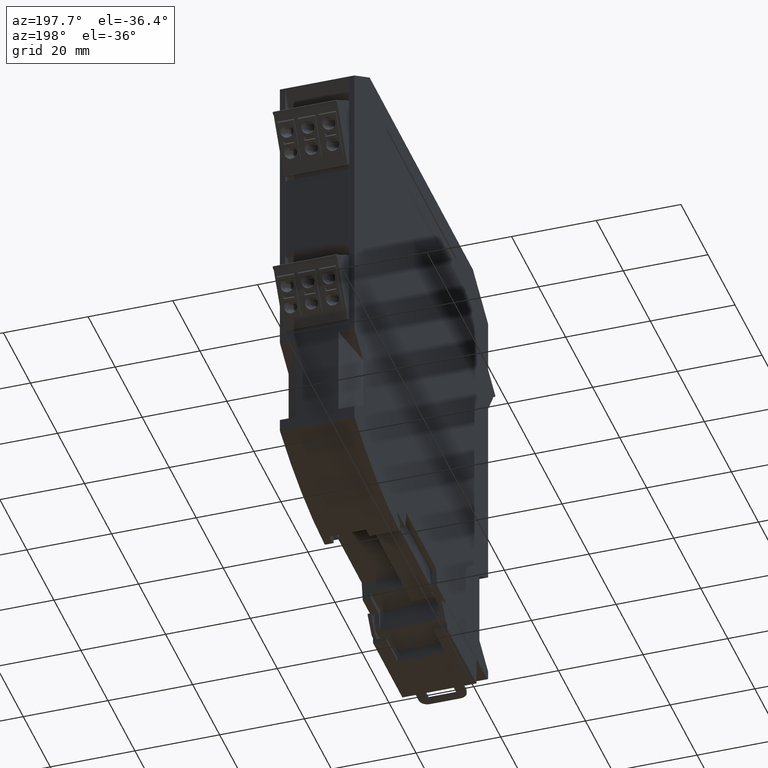
[diagram: clean part render]
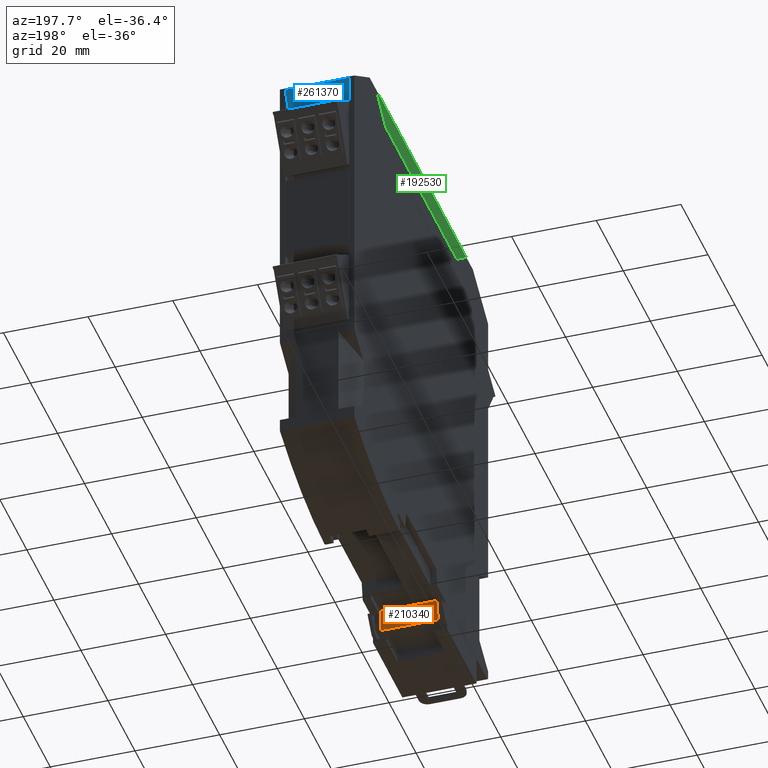
[diagram: same view with three faces highlighted in distinct colors, each labeled with its STEP entity id]
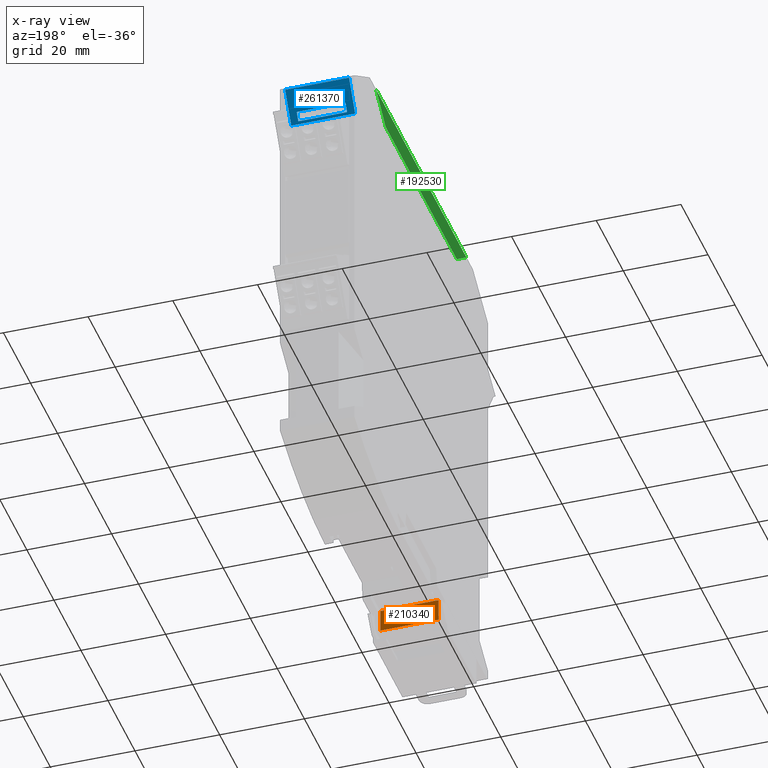
[diagram: x-ray of the same camera — body ghosted, the three highlighted faces saturated]
A machine part, auxiliary view with three faces highlighted in distinct colors.
The next image is the same camera in x-ray (body ghosted, the three faces saturated) — at least one of them is partly hidden behind the body in this view.
Their STEP definitions:

[orange] entity #210340 — the highlighted planar face has unit normal (-0, -1, 0).
#198780=CARTESIAN_POINT('',(3.79999922312159,37.5143478315641,
2.64999999998504));
#198790=DIRECTION('',(-1.,2.22464679914735E-16,-6.00890142648818E-32));
#198800=VECTOR('',#198790,1.);
#198810=LINE('',#198780,#198800);
#198840=CARTESIAN_POINT('',(10.6999992229375,37.5143478315641,
2.64999999998513));
#198850=VERTEX_POINT('',#198840);
#210010=CARTESIAN_POINT('',(9.19999922293748,37.5143478315641,
2.64999999998499));
#210020=DIRECTION('',(-2.22464679914735E-16,-1.,2.06375055442612E-14));
#210030=DIRECTION('',(-4.54172799485398E-30,-2.06375055442612E-14,-1.));
#210040=AXIS2_PLACEMENT_3D('',#210010,#210020,#210030);
#210050=PLANE('',#210040);
#210060=CARTESIAN_POINT('',(10.6999992229375,37.5143478315631,
-45.8000000000523));
#210070=DIRECTION('',(2.28384227806859E-18,2.06375055442612E-14,1.));
#210080=VECTOR('',#210070,1.);
#210090=LINE('',#210060,#210080);
#210100=CARTESIAN_POINT('',(10.6999992229375,37.5143478315642,
8.09999999999313));
#210110=VERTEX_POINT('',#210100);
#210120=EDGE_CURVE('',#198850,#210110,#210090,.T.);
#210130=ORIENTED_EDGE('',*,*,#210120,.F.);
#210140=CARTESIAN_POINT('',(3.79999922312159,37.5143478315642,
8.09999999999314));
#210150=DIRECTION('',(-1.,2.22464679914735E-16,-3.04296931213183E-32));
#210160=VECTOR('',#210150,1.);
#210170=LINE('',#210140,#210160);
#210180=CARTESIAN_POINT('',(-3.10000077752818,37.5143478315642,
8.09999999999313));
#210190=VERTEX_POINT('',#210180);
#210200=EDGE_CURVE('',#210110,#210190,#210170,.T.);
#210210=ORIENTED_EDGE('',*,*,#210200,.F.);
#210220=CARTESIAN_POINT('',(-3.10000077752818,37.5143478315631,
-45.8000000000523));
#210230=DIRECTION('',(-2.28384227806859E-18,-2.06375055442612E-14,-1.));
#210240=VECTOR('',#210230,1.);
#210250=LINE('',#210220,#210240);
#210260=CARTESIAN_POINT('',(-3.10000077752818,37.5143478315641,
2.64999999998505));
#210270=VERTEX_POINT('',#210260);
#210280=EDGE_CURVE('',#210190,#210270,#210250,.T.);
#210290=ORIENTED_EDGE('',*,*,#210280,.F.);
#210300=EDGE_CURVE('',#198850,#210270,#198810,.T.);
#210310=ORIENTED_EDGE('',*,*,#210300,.T.);
#210320=EDGE_LOOP('',(#210310,#210290,#210210,#210130));
#210330=FACE_OUTER_BOUND('',#210320,.T.);
#210340=ADVANCED_FACE('',(#210330),#210050,.F.);

[blue] entity #261370 — the highlighted planar face has unit normal (-0, -0.8387, 0.5446).
#215110=CARTESIAN_POINT('',(-3.75000077762564,105.864347832024,
105.981423189512));
#215120=VERTEX_POINT('',#215110);
#215150=CARTESIAN_POINT('',(3.79999922312159,105.864347832024,
105.981423189512));
#215160=DIRECTION('',(-1.,2.2474852219281E-16,3.51680870688642E-18));
#215170=VECTOR('',#215160,1.);
#215180=LINE('',#215150,#215170);
#215190=CARTESIAN_POINT('',(11.3499992229375,105.864347832024,
105.981423189512));
#215200=VERTEX_POINT('',#215190);
#215210=EDGE_CURVE('',#215200,#215120,#215180,.T.);
#228460=CARTESIAN_POINT('',(-1.95000077752817,102.905395130916,
101.425035595492));
#228470=VERTEX_POINT('',#228460);
#228500=CARTESIAN_POINT('',(-1.95000077752819,7.32880948611077,
-45.7499999999716));
#228510=DIRECTION('',(1.41937139033046E-16,0.544639035015019,
0.83867056794543));
#228520=VECTOR('',#228510,1.);
#228530=LINE('',#228500,#228520);
#228540=CARTESIAN_POINT('',(-1.95000077752817,101.750943870749,
99.6473365475277));
#228550=VERTEX_POINT('',#228540);
#228560=EDGE_CURVE('',#228550,#228470,#228530,.T.);
#260820=CARTESIAN_POINT('',(11.8499992229375,104.599145130135,
104.03318187675));
#260830=DIRECTION('',(-1.86574579451889E-16,-0.83867056794543,
0.544639035015019));
#260840=DIRECTION('',(-1.21162948593686E-16,-0.544639035015019,
-0.83867056794543));
#260850=AXIS2_PLACEMENT_3D('',#260820,#260830,#260840);
#260860=PLANE('',#260850);
#260870=CARTESIAN_POINT('',(3.79999922312159,101.750943870754,
99.6473365475357));
#260880=DIRECTION('',(1.,-1.19489482378195E-16,1.58567898828409E-16));
#260890=VECTOR('',#260880,1.);
#260900=LINE('',#260870,#260890);
#260910=CARTESIAN_POINT('',(9.5499992229375,101.750943870754,
99.6473365475358));
#260920=VERTEX_POINT('',#260910);
#260930=EDGE_CURVE('',#228550,#260920,#260900,.T.);
#260940=ORIENTED_EDGE('',*,*,#260930,.T.);
#260950=ORIENTED_EDGE('',*,*,#228560,.F.);
#260960=CARTESIAN_POINT('',(3.79999922312159,102.905395130916,
101.425035595492));
#260970=DIRECTION('',(-1.,1.56474608512995E-16,-1.01615798911165E-16));
#260980=VECTOR('',#260970,1.);
#260990=LINE('',#260960,#260980);
#261000=CARTESIAN_POINT('',(9.5499992229375,102.905395130916,
101.425035595492));
#261010=VERTEX_POINT('',#261000);
#261020=EDGE_CURVE('',#261010,#228470,#260990,.T.);
#261030=ORIENTED_EDGE('',*,*,#261020,.T.);
#261040=CARTESIAN_POINT('',(9.54999922293748,7.32880948611077,
-45.7499999999716));
#261050=DIRECTION('',(1.41937139033046E-16,0.544639035015019,
0.83867056794543));
#261060=VECTOR('',#261050,1.);
#261070=LINE('',#261040,#261060);
#261080=EDGE_CURVE('',#260920,#261010,#261070,.T.);
#261090=ORIENTED_EDGE('',*,*,#261080,.T.);
#261100=EDGE_LOOP('',(#261090,#261030,#260950,#260940));
#261110=FACE_BOUND('',#261100,.T.);
#261120=CARTESIAN_POINT('',(3.79999922312159,101.373074056398,
99.065468059526));
#261130=DIRECTION('',(1.,-2.8916372500692E-16,-1.02707522657346E-16));
#261140=VECTOR('',#261130,1.);
#261150=LINE('',#261120,#261140);
#261160=CARTESIAN_POINT('',(-3.75000077762564,101.373074056398,
99.065468059526));
#261170=VERTEX_POINT('',#261160);
#261180=CARTESIAN_POINT('',(11.3499992229375,101.373074056398,
99.065468059526));
#261190=VERTEX_POINT('',#261180);
#261200=EDGE_CURVE('',#261170,#261190,#261150,.T.);
#261210=ORIENTED_EDGE('',*,*,#261200,.F.);
#261220=CARTESIAN_POINT('',(11.3499992229375,7.32880948611077,
-45.7499999999716));
#261230=DIRECTION('',(3.15926095490162E-18,0.544639035015019,
0.83867056794543));
#261240=VECTOR('',#261230,1.);
#261250=LINE('',#261220,#261240);
#261260=EDGE_CURVE('',#261190,#215200,#261250,.T.);
#261270=ORIENTED_EDGE('',*,*,#261260,.F.);
#261280=ORIENTED_EDGE('',*,*,#215210,.F.);
#261290=CARTESIAN_POINT('',(-3.75000077762564,7.32880948611077,
-45.7499999999716));
#261300=DIRECTION('',(3.15926095490162E-18,0.544639035015019,
0.83867056794543));
#261310=VECTOR('',#261300,1.);
#261320=LINE('',#261290,#261310);
#261330=EDGE_CURVE('',#261170,#215120,#261320,.T.);
#261340=ORIENTED_EDGE('',*,*,#261330,.T.);
#261350=EDGE_LOOP('',(#261340,#261280,#261270,#261210));
#261360=FACE_OUTER_BOUND('',#261350,.T.);
#261370=ADVANCED_FACE('',(#261110,#261360),#260860,.F.);

[green] entity #192530 — the highlighted planar face has unit normal (-1, 0, 0).
#189840=CARTESIAN_POINT('',(-5.00000077734407,56.3643478314492,
70.3346654496946));
#189850=DIRECTION('',(-1.,2.24748522192808E-16,2.28384227764925E-18));
#189860=DIRECTION('',(-2.24748522192804E-16,-1.,1.88477583894362E-12));
#189870=AXIS2_PLACEMENT_3D('',#189840,#189850,#189860);
#189880=PLANE('',#189870);
#190350=CARTESIAN_POINT('',(-5.00000077734406,89.6847695075065,
113.64999999987));
#190360=VERTEX_POINT('',#190350);
#190390=CARTESIAN_POINT('',(-5.00000077734407,56.3643478316776,
87.6172334754011));
#190400=DIRECTION('',(1.69739219674763E-16,0.788010753606706,
0.615661475325679));
#190410=VECTOR('',#190400,1.);
#190420=LINE('',#190390,#190410);
#190430=CARTESIAN_POINT('',(-5.00000077734407,82.7090876122257,
108.200000000004));
#190440=VERTEX_POINT('',#190430);
#190450=EDGE_CURVE('',#190440,#190360,#190420,.T.);
#190680=CARTESIAN_POINT('',(-5.00000077734408,30.0196080509323,
108.200000000004));
#190690=VERTEX_POINT('',#190680);
#190720=CARTESIAN_POINT('',(-5.00000077734407,56.3643478316776,
87.6172334752486));
#190730=DIRECTION('',(1.94682647877739E-16,0.788010753606729,
-0.61566147532565));
#190740=VECTOR('',#190730,1.);
#190750=LINE('',#190720,#190740);
#190760=CARTESIAN_POINT('',(-5.00000077734408,23.0439261554903,
113.649999999996));
#190770=VERTEX_POINT('',#190760);
#190780=EDGE_CURVE('',#190770,#190690,#190750,.T.);
#192370=ORIENTED_EDGE('',*,*,#190450,.F.);
#192380=CARTESIAN_POINT('',(-5.00000077734407,56.3643478317267,
113.649999999933));
#192390=DIRECTION('',(2.24748522192804E-16,1.,-1.88477583894362E-12));
#192400=VECTOR('',#192390,1.);
#192410=LINE('',#192380,#192400);
#192420=EDGE_CURVE('',#190770,#190360,#192410,.T.);
#192430=ORIENTED_EDGE('',*,*,#192420,.T.);
#192440=ORIENTED_EDGE('',*,*,#190780,.F.);
#192450=CARTESIAN_POINT('',(-5.00000077734407,56.3643478317164,
108.200000000004));
#192460=DIRECTION('',(2.24748522193004E-16,1.,2.05519713331486E-16));
#192470=VECTOR('',#192460,1.);
#192480=LINE('',#192450,#192470);
#192490=EDGE_CURVE('',#190690,#190440,#192480,.T.);
#192500=ORIENTED_EDGE('',*,*,#192490,.F.);
#192510=EDGE_LOOP('',(#192500,#192440,#192430,#192370));
#192520=FACE_OUTER_BOUND('',#192510,.T.);
#192530=ADVANCED_FACE('',(#192520),#189880,.T.);